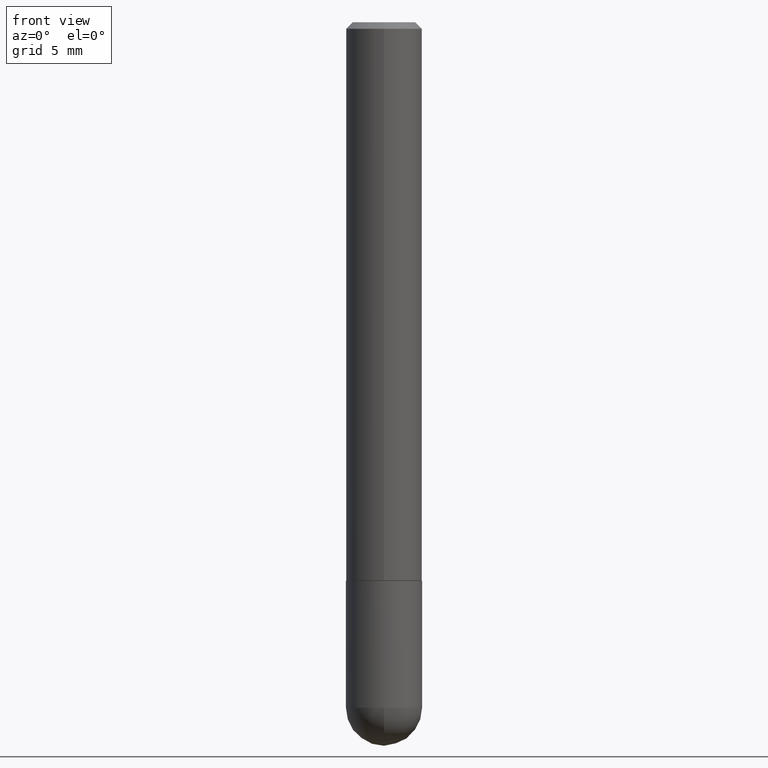
[diagram: clean part render]
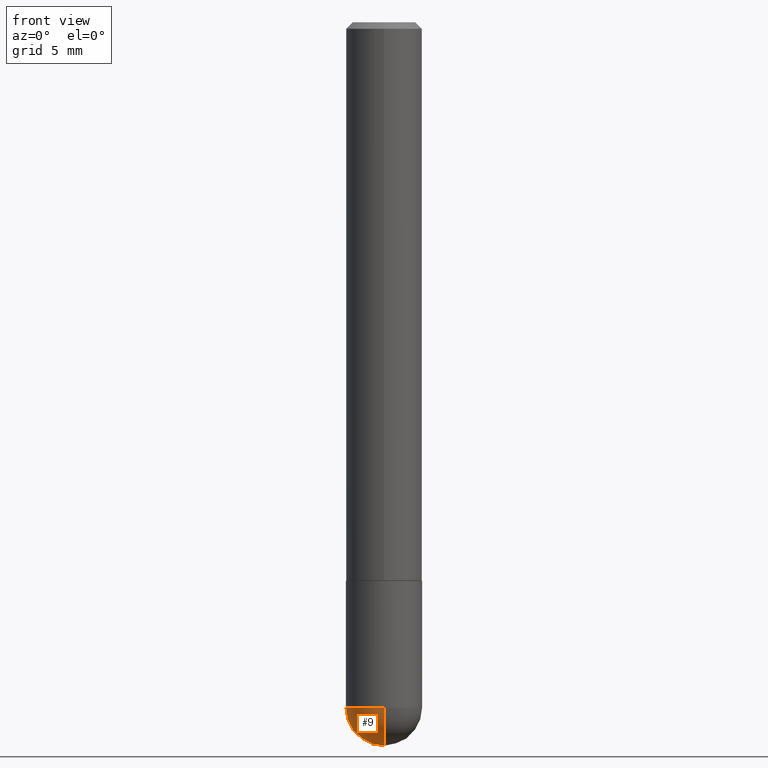
[diagram: same view with one face highlighted and labeled with its STEP entity id]
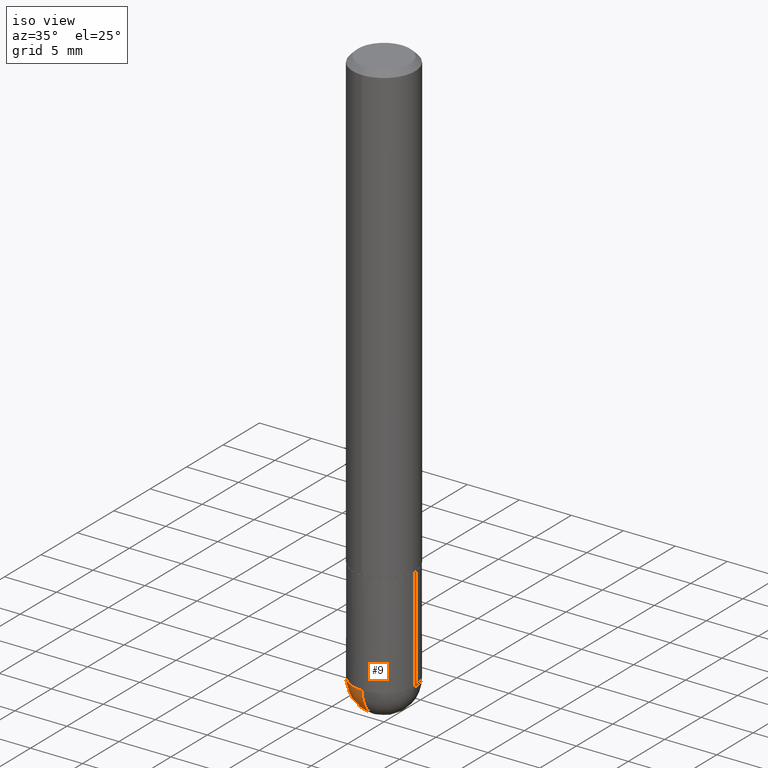
[diagram: same view with one face highlighted and labeled with its STEP entity id]
A machine part, front view. The second image highlights one B-rep face of the part: STEP entity #9.
A second angle (iso view) of the same face is appended — the face is thin or edge-on in the first view.
In plain terms, the highlighted spherical surface has radius 2.9997 mm.
Its self-contained STEP definition (entity closure, byte-faithful):
#7 = DIRECTION ( 'NONE',  ( 6.982962677686265922E-15, 1.000000000000000000, -4.626330217890359870E-15 ) ) ;
#9 = ADVANCED_FACE ( 'NONE', ( #39 ), #356, .T. ) ;
#14 = DIRECTION ( 'NONE',  ( -2.445468806185136597E-29, 3.491481338843145583E-15, 1.000000000000000000 ) ) ;
#22 = CARTESIAN_POINT ( 'NONE',  ( -0.1180999999999999966, -5.896440253896576841E-15, -2.125999999999999890 ) ) ;
#26 = VERTEX_POINT ( 'NONE', #222 ) ;
#29 = ORIENTED_EDGE ( 'NONE', *, *, #290, .T. ) ;
#31 = CIRCLE ( 'NONE', #210, 0.1180999999999999966 ) ;
#39 = FACE_OUTER_BOUND ( 'NONE', #96, .T. ) ;
#51 = DIRECTION ( 'NONE',  ( 6.982962677686265133E-15, 1.000000000000000000, 0.000000000000000000 ) ) ;
#67 = EDGE_CURVE ( 'NONE', #141, #319, #132, .T. ) ;
#79 = DIRECTION ( 'NONE',  ( 1.000000000000000000, -6.982962677686265133E-15, 0.000000000000000000 ) ) ;
#85 = AXIS2_PLACEMENT_3D ( 'NONE', #102, #334, #336 ) ;
#92 = CIRCLE ( 'NONE', #99, 0.1181000000000002603 ) ;
#96 = EDGE_LOOP ( 'NONE', ( #360, #29, #405, #225 ) ) ;
#99 = AXIS2_PLACEMENT_3D ( 'NONE', #393, #235, #51 ) ;
#102 = CARTESIAN_POINT ( 'NONE',  ( 4.867946904035714063E-29, -7.897071694520576927E-15, -2.125999999999999890 ) ) ;
#103 = CARTESIAN_POINT ( 'NONE',  ( 5.199066681949599750E-29, -7.422889326380526631E-15, -2.125999999999999890 ) ) ;
#109 = DIRECTION ( 'NONE',  ( 1.000000000000000000, -6.982962677686265133E-15, 0.000000000000000000 ) ) ;
#132 = CIRCLE ( 'NONE', #401, 0.1180999999999999966 ) ;
#140 = CARTESIAN_POINT ( 'NONE',  ( 8.246878922347992427E-16, 0.1180999999999924471, -2.126000000000000334 ) ) ;
#141 = VERTEX_POINT ( 'NONE', #140 ) ;
#156 = CARTESIAN_POINT ( 'NONE',  ( 4.867946904035714063E-29, -7.897071694520576927E-15, -2.125999999999999890 ) ) ;
#167 = CARTESIAN_POINT ( 'NONE',  ( -8.391509709326287947E-16, -0.1181000000000077821, -2.125999999999999446 ) ) ;
#195 = DIRECTION ( 'NONE',  ( -1.000000000000000000, 6.982962677686265922E-15, -4.883557194083112901E-29 ) ) ;
#210 = AXIS2_PLACEMENT_3D ( 'NONE', #103, #262, #79 ) ;
#222 = CARTESIAN_POINT ( 'NONE',  ( 5.161806526983783890E-29, -8.302184101288988852E-15, -2.244100000000000428 ) ) ;
#225 = ORIENTED_EDGE ( 'NONE', *, *, #67, .F. ) ;
#230 = AXIS2_PLACEMENT_3D ( 'NONE', #156, #195, #7 ) ;
#235 = DIRECTION ( 'NONE',  ( 1.000000000000000000, -6.982962677686265922E-15, 4.883557194083112340E-29 ) ) ;
#240 = VERTEX_POINT ( 'NONE', #167 ) ;
#254 = EDGE_CURVE ( 'NONE', #26, #141, #92, .T. ) ;
#262 = DIRECTION ( 'NONE',  ( -2.445468806185136597E-29, 3.491481338843145583E-15, 1.000000000000000000 ) ) ;
#273 = EDGE_CURVE ( 'NONE', #319, #240, #31, .T. ) ;
#290 = EDGE_CURVE ( 'NONE', #26, #240, #315, .T. ) ;
#315 = CIRCLE ( 'NONE', #85, 0.1181000000000002603 ) ;
#319 = VERTEX_POINT ( 'NONE', #22 ) ;
#334 = DIRECTION ( 'NONE',  ( -1.000000000000000000, 7.105427357601001070E-15, -4.926315508542082329E-29 ) ) ;
#336 = DIRECTION ( 'NONE',  ( -7.105427357601000281E-15, -1.000000000000000000, 0.000000000000000000 ) ) ;
#356 = SPHERICAL_SURFACE ( 'NONE', #230, 0.1181000000000002603 ) ;
#360 = ORIENTED_EDGE ( 'NONE', *, *, #254, .F. ) ;
#362 = CARTESIAN_POINT ( 'NONE',  ( 5.199066681949599750E-29, -7.422889326380526631E-15, -2.125999999999999890 ) ) ;
#393 = CARTESIAN_POINT ( 'NONE',  ( 4.867946904035714063E-29, -7.897071694520576927E-15, -2.125999999999999890 ) ) ;
#401 = AXIS2_PLACEMENT_3D ( 'NONE', #362, #14, #109 ) ;
#405 = ORIENTED_EDGE ( 'NONE', *, *, #273, .F. ) ;